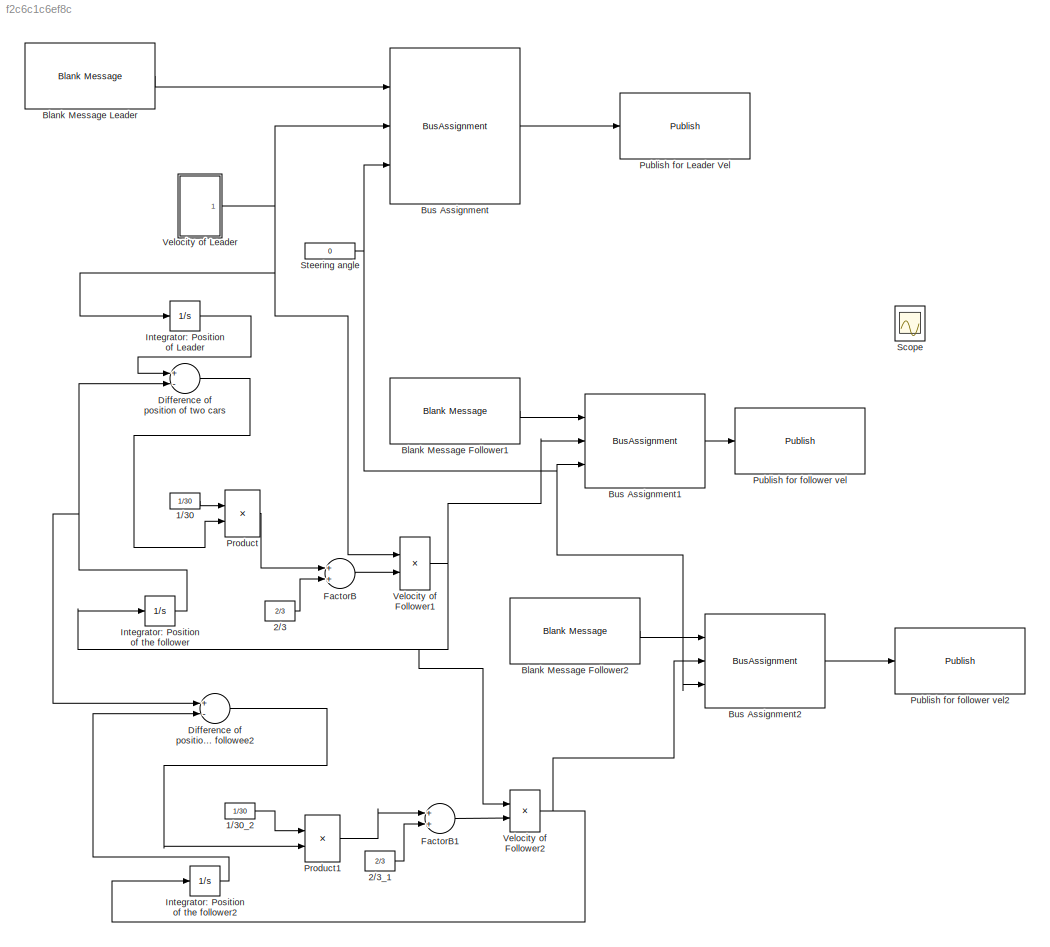
MODEL slx_f2c6c1c6ef8c
KIND model
CONFIG AbsTol = auto
CONFIG FixedStep = auto
CONFIG MaxStep = auto
CONFIG MinStep = auto
CONFIG RelTol = 1e-3
CONFIG SampleTimeConstraint = Unconstrained
CONFIG Solver = VariableStepAuto
CONFIG SolverMode = Auto
CONFIG SolverName = VariableStepAuto
CONFIG StartTime = 0.0
CONFIG StopTime = inf
BLOCK [Constant] 1//30
  Value = 1/30
BLOCK [Constant] 1//30_2
  Value = 1/30
BLOCK [Constant] 2//3
  Value = 2/3
BLOCK [Constant] 2//3_1
  Value = 2/3
BLOCK [Reference] Blank Message Follower1  REF=robotlib/Blank Message
  Ports = [0, 1]
  SourceBlock = robotlib/Blank Message
  SourceLibraryInfo = This block requires Robotics System Toolbox
  SourceType = ROS Blank Message
BLOCK [Reference] Blank Message Follower2  REF=robotlib/Blank Message
  Ports = [0, 1]
  SourceBlock = robotlib/Blank Message
  SourceLibraryInfo = This block requires Robotics System Toolbox
  SourceType = ROS Blank Message
BLOCK [Reference] Blank Message Leader  REF=robotlib/Blank Message
  Ports = [0, 1]
  SourceBlock = robotlib/Blank Message
  SourceLibraryInfo = This block requires Robotics System Toolbox
  SourceType = ROS Blank Message
BLOCK [BusAssignment] Bus Assignment
  AssignedSignals = Linear.X,Angular.Z
  Ports = [3, 1]
BLOCK [BusAssignment] Bus Assignment1
  AssignedSignals = Linear.X,Angular.Z
  Ports = [3, 1]
BLOCK [BusAssignment] Bus Assignment2
  AssignedSignals = Linear.X,Angular.Z
  Ports = [3, 1]
BLOCK [Sum] Difference of position of follower1 and followee2
  InputSameDT = off
  Inputs = +-
  OutDataTypeStr = Inherit: Inherit via internal rule
  Ports = [2, 1]
  SaturateOnIntegerOverflow = off
BLOCK [Sum] Difference of position of two cars
  InputSameDT = off
  Inputs = +-
  OutDataTypeStr = Inherit: Inherit via internal rule
  Ports = [2, 1]
  SaturateOnIntegerOverflow = off
BLOCK [Sum] FactorB
  InputSameDT = off
  OutDataTypeStr = Inherit: Inherit via internal rule
  Ports = [2, 1]
  SaturateOnIntegerOverflow = off
BLOCK [Sum] FactorB1
  InputSameDT = off
  OutDataTypeStr = Inherit: Inherit via internal rule
  Ports = [2, 1]
  SaturateOnIntegerOverflow = off
BLOCK [Integrator] Integrator: Position of Leader
  Ports = [1, 1]
BLOCK [Integrator] Integrator: Position of the follower
  Ports = [1, 1]
BLOCK [Integrator] Integrator: Position of the follower2
  Ports = [1, 1]
BLOCK [Product] Product
  InputSameDT = off
  OutDataTypeStr = Inherit: Inherit via internal rule
  Ports = [2, 1]
  RndMeth = Floor
  SaturateOnIntegerOverflow = off
BLOCK [Product] Product1
  InputSameDT = off
  OutDataTypeStr = Inherit: Inherit via internal rule
  Ports = [2, 1]
  RndMeth = Floor
  SaturateOnIntegerOverflow = off
BLOCK [Reference] Publish for Leader Vel  REF=robotlib/Publish
  Ports = [1]
  SourceBlock = robotlib/Publish
  SourceLibraryInfo = This block requires Robotics System Toolbox
  SourceType = ROS Publish
BLOCK [Reference] Publish for follower vel  REF=robotlib/Publish
  Ports = [1]
  SourceBlock = robotlib/Publish
  SourceLibraryInfo = This block requires Robotics System Toolbox
  SourceType = ROS Publish
BLOCK [Reference] Publish for follower vel2  REF=robotlib/Publish
  Ports = [1]
  SourceBlock = robotlib/Publish
  SourceLibraryInfo = This block requires Robotics System Toolbox
  SourceType = ROS Publish
BLOCK [Scope] Scope 
  NumInputPorts = 2
  Ports = [2]
  ScopeSpecificationString = Simulink.scopes.TimeScopeBlockCfg('CurrentConfiguration', extmgr.ConfigurationSet(extmgr.Configuration('Core','General UI',true),extmgr.Configuration('Core','Source UI',true),extmgr.Configuration('Sources','WiredSimulink',true,'DataLoggingVariableName','ScopeData1'),extmgr.Configuration('Visuals','Time Domain',true,'SerializedDisplays',{struct('MinYLimReal','-10.84289','MaxYLimReal','20.03466','YL...<+1484ch>
BLOCK [Constant] Steering angle
  Value = 0
BLOCK [Product] Velocity of Follower1
  InputSameDT = off
  OutDataTypeStr = Inherit: Inherit via internal rule
  Ports = [2, 1]
  RndMeth = Floor
  SaturateOnIntegerOverflow = off
BLOCK [Product] Velocity of Follower2
  InputSameDT = off
  OutDataTypeStr = Inherit: Inherit via internal rule
  Ports = [2, 1]
  RndMeth = Floor
  SaturateOnIntegerOverflow = off
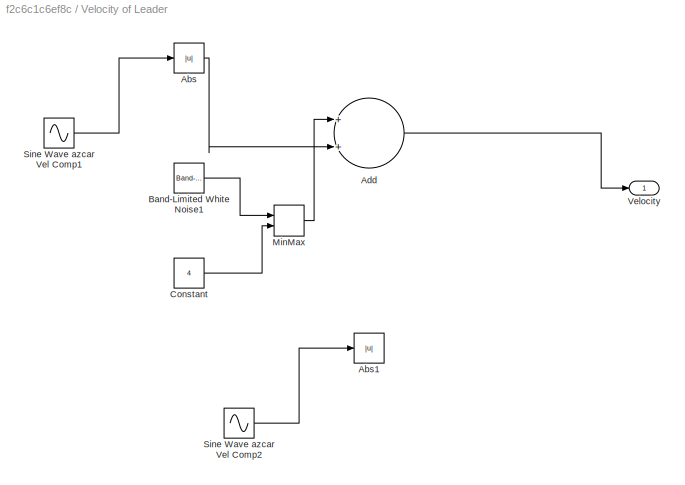
BLOCK [SubSystem] Velocity of Leader
  Ports = [0, 1]
  RequestExecContextInheritance = off
  Variant = off
BLOCK [Abs] Velocity of Leader/Abs
  SaturateOnIntegerOverflow = off
BLOCK [Abs] Velocity of Leader/Abs1
  SaturateOnIntegerOverflow = off
BLOCK [Sum] Velocity of Leader/Add
  InputSameDT = off
  OutDataTypeStr = Inherit: Inherit via internal rule
  Ports = [2, 1]
  SaturateOnIntegerOverflow = off
BLOCK [Reference] Velocity of Leader/Band-Limited White Noise1  REF=simulink/Sources/Band-Limited
White Noise
  Ports = [0, 1]
  SourceBlock = simulink/Sources/Band-Limited\nWhite Noise
  SourceType = Band-Limited White Noise.
BLOCK [Constant] Velocity of Leader/Constant
  Value = 4
BLOCK [MinMax] Velocity of Leader/MinMax
  InputSameDT = off
  Inputs = 2
  Ports = [2, 1]
  SaturateOnIntegerOverflow = off
BLOCK [Sin] Velocity of Leader/Sine Wave azcar Vel Comp1
  Amplitude = 5
  Frequency = 3
  Ports = [0, 1]
  SampleTime = 0
BLOCK [Sin] Velocity of Leader/Sine Wave azcar Vel Comp2
  Amplitude = 5
  Frequency = 3
  Ports = [0, 1]
  SampleTime = 0
BLOCK [Outport] Velocity of Leader/Velocity
  IconDisplay = Port number
LINE 1//30:1 -> Product:1
LINE 1//30_2:1 -> Product1:1
LINE 2//3:1 -> FactorB:2
LINE 2//3_1:1 -> FactorB1:2
LINE Blank Message Follower1:1 -> Bus Assignment1:1
LINE Blank Message Follower2:1 -> Bus Assignment2:1
LINE Blank Message Leader:1 -> Bus Assignment:1
LINE Bus Assignment1:1 -> Publish for follower vel:1
LINE Bus Assignment2:1 -> Publish for follower vel2:1
LINE Bus Assignment:1 -> Publish for Leader Vel:1
LINE Difference of position of follower1 and followee2:1 -> Product1:2
LINE Difference of position of two cars:1 -> Product:2
LINE FactorB1:1 -> Velocity of Follower2:2
LINE FactorB:1 -> Velocity of Follower1:2
LINE Integrator: Position of Leader:1 -> Difference of position of two cars:1
LINE Integrator: Position of the follower2:1 -> Difference of position of follower1 and followee2:2
NET Integrator: Position of the follower:1 -> Difference of position of follower1 and followee2:1, Difference of position of two cars:2
LINE Product1:1 -> FactorB1:1
LINE Product:1 -> FactorB:1
NET Steering angle:1 -> Bus Assignment1:3, Bus Assignment2:3, Bus Assignment:3
NET Velocity of Follower1:1 -> Bus Assignment1:2, Integrator: Position of the follower:1, Velocity of Follower2:1
NET Velocity of Follower2:1 -> Bus Assignment2:2, Integrator: Position of the follower2:1
LINE Velocity of Leader/Abs:1 -> Velocity of Leader/Add:2
LINE Velocity of Leader/Add:1 -> Velocity of Leader/Velocity:1
LINE Velocity of Leader/Band-Limited White Noise1:1 -> Velocity of Leader/MinMax:1
LINE Velocity of Leader/Constant:1 -> Velocity of Leader/MinMax:2
LINE Velocity of Leader/MinMax:1 -> Velocity of Leader/Add:1
LINE Velocity of Leader/Sine Wave azcar Vel Comp1:1 -> Velocity of Leader/Abs:1
LINE Velocity of Leader/Sine Wave azcar Vel Comp2:1 -> Velocity of Leader/Abs1:1
NET Velocity of Leader:1 -> Bus Assignment:2, Integrator: Position of Leader:1, Velocity of Follower1:1
note: NET lines group one-source signal fan-out (src -> all destinations, sorted); 1:1 wires keep LINE
